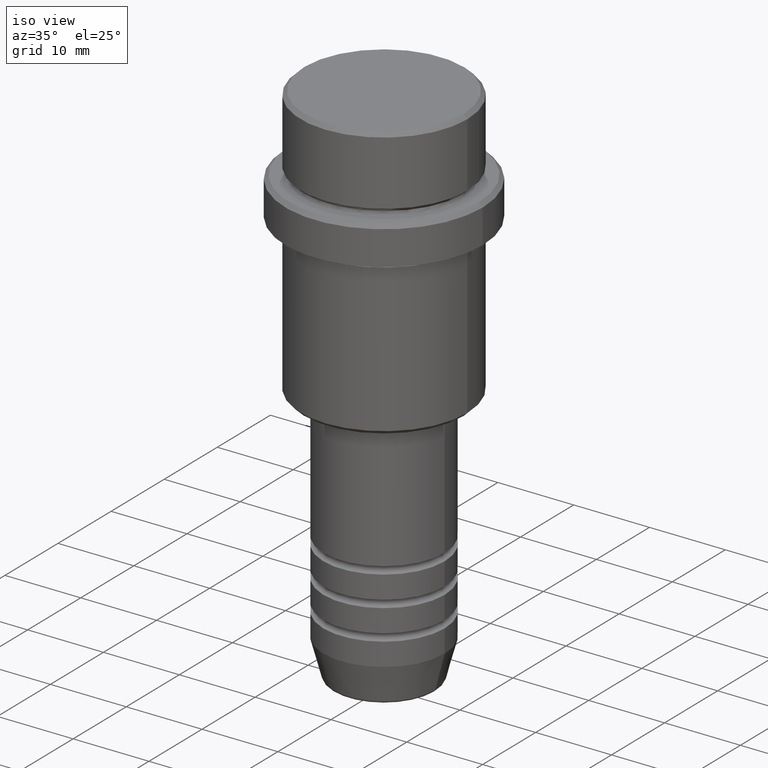
[diagram: clean part render]
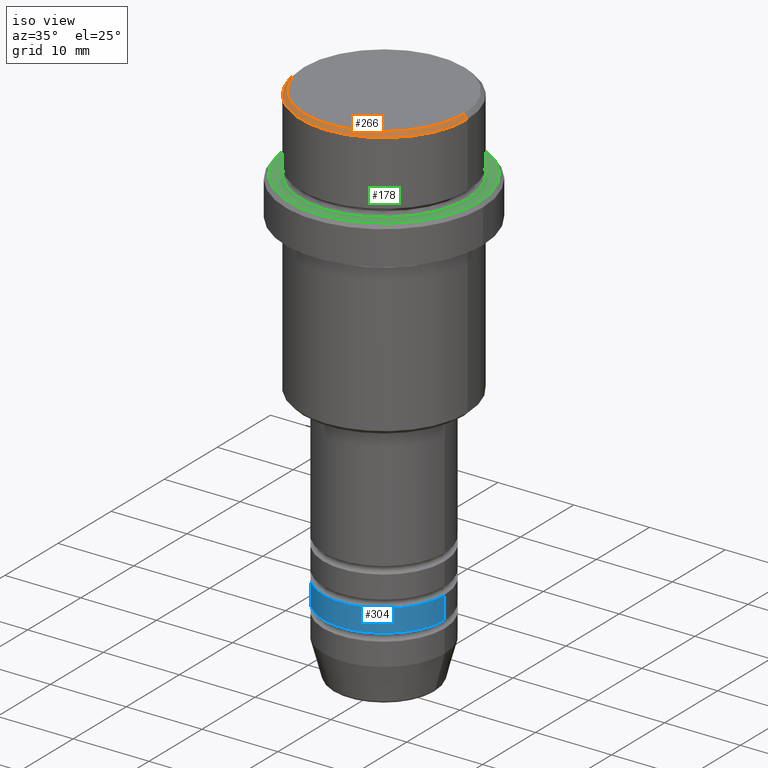
[diagram: same view with three faces highlighted in distinct colors, each labeled with its STEP entity id]
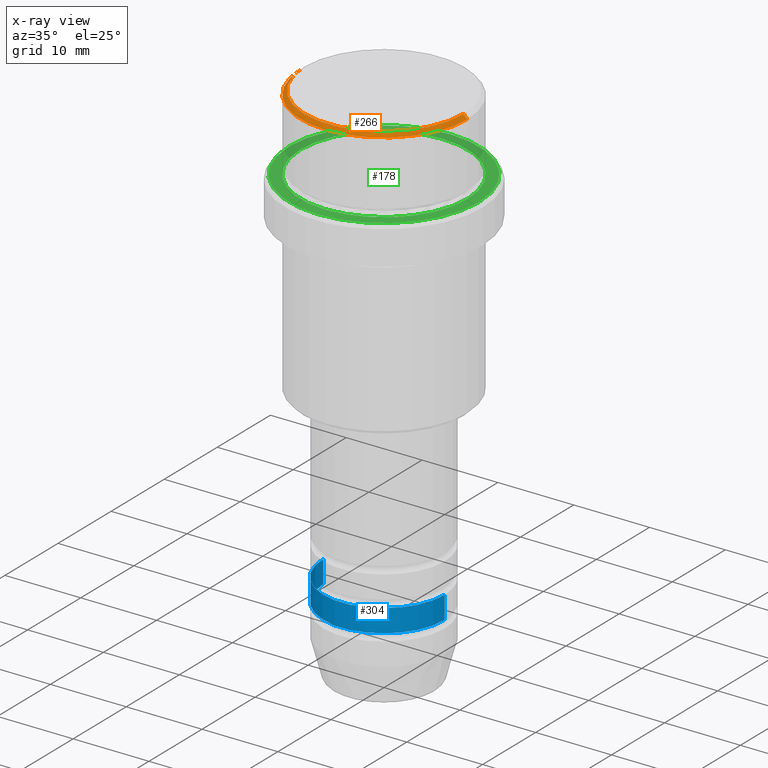
[diagram: x-ray of the same camera — body ghosted, the three highlighted faces saturated]
A machine part, iso view with three faces highlighted in distinct colors.
The next image is the same camera in x-ray (body ghosted, the three faces saturated) — at least one of them is partly hidden behind the body in this view.
Their STEP definitions:

[orange] entity #266 — the highlighted conical surface has half-angle 45 deg.
#78 = CARTESIAN_POINT ( 'NONE',  ( 10.99999999999998757, 0.000000000000000000, -0.4999999999999813483 ) ) ;
#113 = CARTESIAN_POINT ( 'NONE',  ( 0.000000000000000000, 0.000000000000000000, 0.000000000000000000 ) ) ;
#116 = ORIENTED_EDGE ( 'NONE', *, *, #1161, .F. ) ;
#162 = DIRECTION ( 'NONE',  ( -0.000000000000000000, -0.000000000000000000, 1.000000000000000000 ) ) ;
#183 = ORIENTED_EDGE ( 'NONE', *, *, #1342, .T. ) ;
#188 = AXIS2_PLACEMENT_3D ( 'NONE', #113, #547, #696 ) ;
#266 = ADVANCED_FACE ( 'NONE', ( #1089 ), #297, .T. ) ;
#279 = AXIS2_PLACEMENT_3D ( 'NONE', #1299, #431, #742 ) ;
#291 = DIRECTION ( 'NONE',  ( 1.000000000000000000, 0.000000000000000000, 0.000000000000000000 ) ) ;
#297 = CONICAL_SURFACE ( 'NONE', #188, 10.50000000000000178, 0.7853981633974517207 ) ;
#312 = CARTESIAN_POINT ( 'NONE',  ( -10.50000000000000178, 0.000000000000000000, 0.000000000000000000 ) ) ;
#425 = CIRCLE ( 'NONE', #279, 10.99999999999998757 ) ;
#431 = DIRECTION ( 'NONE',  ( 0.000000000000000000, 0.000000000000000000, -1.000000000000000000 ) ) ;
#472 = ORIENTED_EDGE ( 'NONE', *, *, #839, .F. ) ;
#547 = DIRECTION ( 'NONE',  ( 0.000000000000000000, 0.000000000000000000, -1.000000000000000000 ) ) ;
#584 = VECTOR ( 'NONE', #671, 1000.000000000000114 ) ;
#644 = LINE ( 'NONE', #861, #1078 ) ;
#668 = EDGE_CURVE ( 'NONE', #1171, #970, #938, .T. ) ;
#671 = DIRECTION ( 'NONE',  ( -0.7071067811865500152, 0.000000000000000000, -0.7071067811865451302 ) ) ;
#696 = DIRECTION ( 'NONE',  ( -1.000000000000000000, 0.000000000000000000, 0.000000000000000000 ) ) ;
#715 = CARTESIAN_POINT ( 'NONE',  ( -10.99999999999998757, 1.347111479062086827E-15, -0.4999999999999813483 ) ) ;
#742 = DIRECTION ( 'NONE',  ( 1.000000000000000000, 0.000000000000000000, 0.000000000000000000 ) ) ;
#753 = ORIENTED_EDGE ( 'NONE', *, *, #668, .F. ) ;
#773 = VERTEX_POINT ( 'NONE', #715 ) ;
#786 = CARTESIAN_POINT ( 'NONE',  ( 10.50000000000000178, 1.316495309083404026E-15, 0.000000000000000000 ) ) ;
#790 = AXIS2_PLACEMENT_3D ( 'NONE', #1368, #162, #291 ) ;
#839 = EDGE_CURVE ( 'NONE', #970, #1221, #644, .T. ) ;
#861 = CARTESIAN_POINT ( 'NONE',  ( 10.50000000000000178, 1.285879139104721028E-15, 0.000000000000000000 ) ) ;
#867 = DIRECTION ( 'NONE',  ( 0.7071067811865500152, 8.659560562354963673E-17, -0.7071067811865451302 ) ) ;
#884 = EDGE_LOOP ( 'NONE', ( #472, #753, #183, #116 ) ) ;
#898 = LINE ( 'NONE', #1203, #584 ) ;
#938 = CIRCLE ( 'NONE', #790, 10.50000000000000178 ) ;
#970 = VERTEX_POINT ( 'NONE', #786 ) ;
#1078 = VECTOR ( 'NONE', #867, 1000.000000000000114 ) ;
#1089 = FACE_OUTER_BOUND ( 'NONE', #884, .T. ) ;
#1161 = EDGE_CURVE ( 'NONE', #1221, #773, #425, .T. ) ;
#1171 = VERTEX_POINT ( 'NONE', #312 ) ;
#1203 = CARTESIAN_POINT ( 'NONE',  ( -10.50000000000000178, 0.000000000000000000, 0.000000000000000000 ) ) ;
#1221 = VERTEX_POINT ( 'NONE', #78 ) ;
#1299 = CARTESIAN_POINT ( 'NONE',  ( 0.000000000000000000, 0.000000000000000000, -0.4999999999999813483 ) ) ;
#1342 = EDGE_CURVE ( 'NONE', #1171, #773, #898, .T. ) ;
#1368 = CARTESIAN_POINT ( 'NONE',  ( 0.000000000000000000, 0.000000000000000000, 0.000000000000000000 ) ) ;

[blue] entity #304 — the highlighted cylindrical surface (partial cylindrical patch) has radius 8 mm, axis along (-0, -0, 1).
#16 = DIRECTION ( 'NONE',  ( -0.000000000000000000, -0.000000000000000000, 1.000000000000000000 ) ) ;
#26 = VECTOR ( 'NONE', #344, 1000.000000000000000 ) ;
#81 = EDGE_CURVE ( 'NONE', #176, #90, #524, .T. ) ;
#90 = VERTEX_POINT ( 'NONE', #485 ) ;
#176 = VERTEX_POINT ( 'NONE', #1247 ) ;
#286 = FACE_OUTER_BOUND ( 'NONE', #946, .T. ) ;
#304 = ADVANCED_FACE ( 'NONE', ( #286 ), #1042, .T. ) ;
#344 = DIRECTION ( 'NONE',  ( -0.000000000000000000, -0.000000000000000000, 1.000000000000000000 ) ) ;
#373 = DIRECTION ( 'NONE',  ( -0.000000000000000000, -0.000000000000000000, 1.000000000000000000 ) ) ;
#385 = DIRECTION ( 'NONE',  ( 1.000000000000000000, 0.000000000000000000, 0.000000000000000000 ) ) ;
#399 = EDGE_CURVE ( 'NONE', #90, #962, #552, .T. ) ;
#406 = CARTESIAN_POINT ( 'NONE',  ( 0.000000000000000000, 0.000000000000000000, 0.000000000000000000 ) ) ;
#466 = CARTESIAN_POINT ( 'NONE',  ( -8.000000000000000000, 9.797174393178825657E-16, 0.000000000000000000 ) ) ;
#485 = CARTESIAN_POINT ( 'NONE',  ( 8.000000000000000000, 0.000000000000000000, -60.99999999999988631 ) ) ;
#500 = AXIS2_PLACEMENT_3D ( 'NONE', #698, #1134, #939 ) ;
#524 = CIRCLE ( 'NONE', #500, 8.000000000000000000 ) ;
#538 = EDGE_CURVE ( 'NONE', #886, #962, #763, .T. ) ;
#552 = LINE ( 'NONE', #746, #26 ) ;
#554 = AXIS2_PLACEMENT_3D ( 'NONE', #561, #16, #1350 ) ;
#561 = CARTESIAN_POINT ( 'NONE',  ( 0.000000000000000000, 0.000000000000000000, -57.99999999999988631 ) ) ;
#566 = ORIENTED_EDGE ( 'NONE', *, *, #1323, .F. ) ;
#698 = CARTESIAN_POINT ( 'NONE',  ( 0.000000000000000000, 0.000000000000000000, -60.99999999999988631 ) ) ;
#732 = AXIS2_PLACEMENT_3D ( 'NONE', #406, #926, #385 ) ;
#746 = CARTESIAN_POINT ( 'NONE',  ( 8.000000000000000000, 0.000000000000000000, 0.000000000000000000 ) ) ;
#762 = CARTESIAN_POINT ( 'NONE',  ( -8.000000000000000000, 9.797174393178825657E-16, -57.99999999999988631 ) ) ;
#763 = CIRCLE ( 'NONE', #554, 8.000000000000000000 ) ;
#803 = ORIENTED_EDGE ( 'NONE', *, *, #81, .T. ) ;
#886 = VERTEX_POINT ( 'NONE', #762 ) ;
#923 = VECTOR ( 'NONE', #373, 1000.000000000000000 ) ;
#926 = DIRECTION ( 'NONE',  ( -0.000000000000000000, -0.000000000000000000, 1.000000000000000000 ) ) ;
#939 = DIRECTION ( 'NONE',  ( 1.000000000000000000, 0.000000000000000000, 0.000000000000000000 ) ) ;
#946 = EDGE_LOOP ( 'NONE', ( #566, #803, #1242, #1172 ) ) ;
#962 = VERTEX_POINT ( 'NONE', #1218 ) ;
#1042 = CYLINDRICAL_SURFACE ( 'NONE', #732, 8.000000000000000000 ) ;
#1134 = DIRECTION ( 'NONE',  ( -0.000000000000000000, -0.000000000000000000, 1.000000000000000000 ) ) ;
#1172 = ORIENTED_EDGE ( 'NONE', *, *, #538, .F. ) ;
#1218 = CARTESIAN_POINT ( 'NONE',  ( 8.000000000000000000, 0.000000000000000000, -57.99999999999988631 ) ) ;
#1242 = ORIENTED_EDGE ( 'NONE', *, *, #399, .T. ) ;
#1247 = CARTESIAN_POINT ( 'NONE',  ( -8.000000000000000000, 9.797174393178825657E-16, -60.99999999999988631 ) ) ;
#1323 = EDGE_CURVE ( 'NONE', #176, #886, #1416, .T. ) ;
#1350 = DIRECTION ( 'NONE',  ( 1.000000000000000000, 0.000000000000000000, 0.000000000000000000 ) ) ;
#1416 = LINE ( 'NONE', #466, #923 ) ;

[green] entity #178 — the highlighted planar face has unit normal (0, -0, 1).
#30 = CARTESIAN_POINT ( 'NONE',  ( 0.000000000000000000, 0.000000000000000000, -10.00000000000000000 ) ) ;
#99 = CIRCLE ( 'NONE', #795, 10.99999999999996625 ) ;
#111 = CARTESIAN_POINT ( 'NONE',  ( -12.49999999999999645, 0.000000000000000000, -10.00000000000000000 ) ) ;
#114 = CARTESIAN_POINT ( 'NONE',  ( 0.000000000000000000, 0.000000000000000000, -10.00000000000000000 ) ) ;
#174 = FACE_OUTER_BOUND ( 'NONE', #1103, .T. ) ;
#178 = ADVANCED_FACE ( 'NONE', ( #174, #311 ), #1297, .T. ) ;
#197 = CARTESIAN_POINT ( 'NONE',  ( -10.99999999999996625, 1.347111479062084460E-15, -10.00000000000000000 ) ) ;
#276 = AXIS2_PLACEMENT_3D ( 'NONE', #30, #470, #904 ) ;
#311 = FACE_BOUND ( 'NONE', #745, .T. ) ;
#317 = CARTESIAN_POINT ( 'NONE',  ( 0.000000000000000000, 10.49999999999996625, -10.00000000000000000 ) ) ;
#340 = CARTESIAN_POINT ( 'NONE',  ( 0.000000000000000000, 0.000000000000000000, -10.00000000000000000 ) ) ;
#366 = CARTESIAN_POINT ( 'NONE',  ( 12.49999999999999645, 1.561424668912875111E-15, -10.00000000000000000 ) ) ;
#405 = ORIENTED_EDGE ( 'NONE', *, *, #1062, .T. ) ;
#426 = ORIENTED_EDGE ( 'NONE', *, *, #1359, .T. ) ;
#428 = ORIENTED_EDGE ( 'NONE', *, *, #1301, .T. ) ;
#447 = CIRCLE ( 'NONE', #276, 12.49999999999999645 ) ;
#451 = DIRECTION ( 'NONE',  ( 0.000000000000000000, 0.000000000000000000, -1.000000000000000000 ) ) ;
#470 = DIRECTION ( 'NONE',  ( -0.000000000000000000, -0.000000000000000000, 1.000000000000000000 ) ) ;
#548 = DIRECTION ( 'NONE',  ( 1.000000000000000000, 0.000000000000000000, 0.000000000000000000 ) ) ;
#583 = VERTEX_POINT ( 'NONE', #366 ) ;
#629 = DIRECTION ( 'NONE',  ( 1.000000000000000000, 0.000000000000000000, 0.000000000000000000 ) ) ;
#660 = ORIENTED_EDGE ( 'NONE', *, *, #1249, .T. ) ;
#735 = CARTESIAN_POINT ( 'NONE',  ( 10.99999999999996625, 0.000000000000000000, -10.00000000000000000 ) ) ;
#745 = EDGE_LOOP ( 'NONE', ( #428, #426 ) ) ;
#794 = AXIS2_PLACEMENT_3D ( 'NONE', #1075, #1282, #1413 ) ;
#795 = AXIS2_PLACEMENT_3D ( 'NONE', #340, #1102, #1109 ) ;
#856 = AXIS2_PLACEMENT_3D ( 'NONE', #114, #451, #548 ) ;
#899 = CIRCLE ( 'NONE', #856, 10.99999999999996625 ) ;
#904 = DIRECTION ( 'NONE',  ( 1.000000000000000000, 0.000000000000000000, 0.000000000000000000 ) ) ;
#917 = VERTEX_POINT ( 'NONE', #735 ) ;
#918 = AXIS2_PLACEMENT_3D ( 'NONE', #317, #973, #629 ) ;
#973 = DIRECTION ( 'NONE',  ( 0.000000000000000000, -0.000000000000000000, 1.000000000000000000 ) ) ;
#1062 = EDGE_CURVE ( 'NONE', #1337, #583, #447, .T. ) ;
#1075 = CARTESIAN_POINT ( 'NONE',  ( 0.000000000000000000, 0.000000000000000000, -10.00000000000000000 ) ) ;
#1102 = DIRECTION ( 'NONE',  ( 0.000000000000000000, 0.000000000000000000, -1.000000000000000000 ) ) ;
#1103 = EDGE_LOOP ( 'NONE', ( #405, #660 ) ) ;
#1109 = DIRECTION ( 'NONE',  ( 1.000000000000000000, 0.000000000000000000, 0.000000000000000000 ) ) ;
#1249 = EDGE_CURVE ( 'NONE', #583, #1337, #1259, .T. ) ;
#1259 = CIRCLE ( 'NONE', #794, 12.49999999999999645 ) ;
#1282 = DIRECTION ( 'NONE',  ( -0.000000000000000000, -0.000000000000000000, 1.000000000000000000 ) ) ;
#1297 = PLANE ( 'NONE',  #918 ) ;
#1301 = EDGE_CURVE ( 'NONE', #917, #1328, #899, .T. ) ;
#1328 = VERTEX_POINT ( 'NONE', #197 ) ;
#1337 = VERTEX_POINT ( 'NONE', #111 ) ;
#1359 = EDGE_CURVE ( 'NONE', #1328, #917, #99, .T. ) ;
#1413 = DIRECTION ( 'NONE',  ( 1.000000000000000000, 0.000000000000000000, 0.000000000000000000 ) ) ;